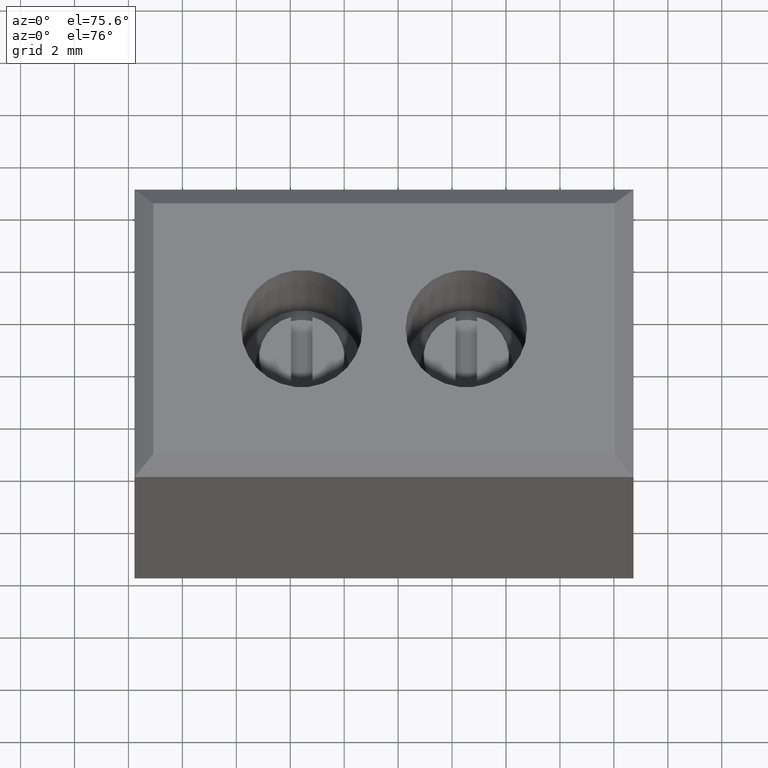
[diagram: clean part render]
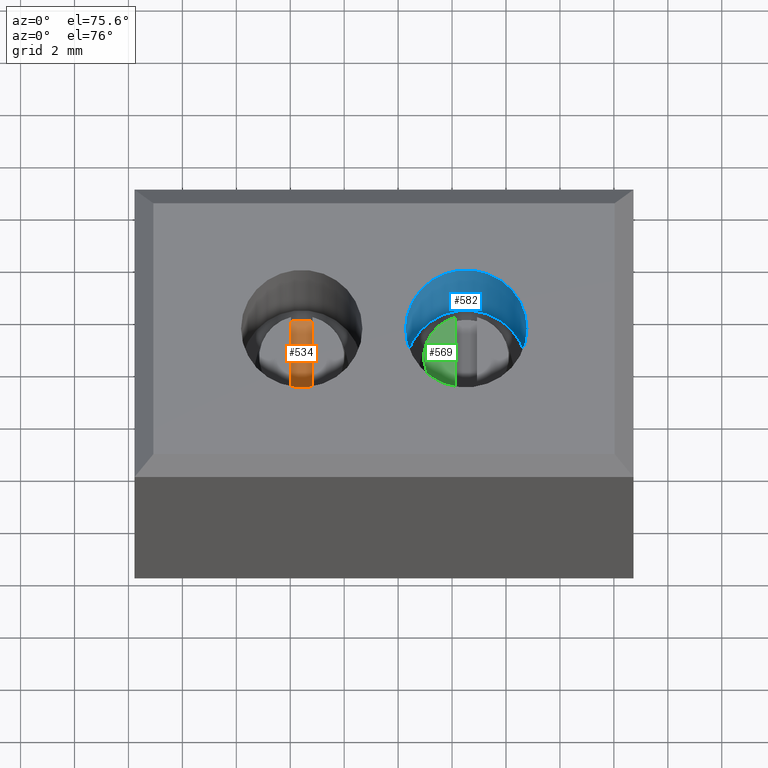
[diagram: same view with three faces highlighted in distinct colors, each labeled with its STEP entity id]
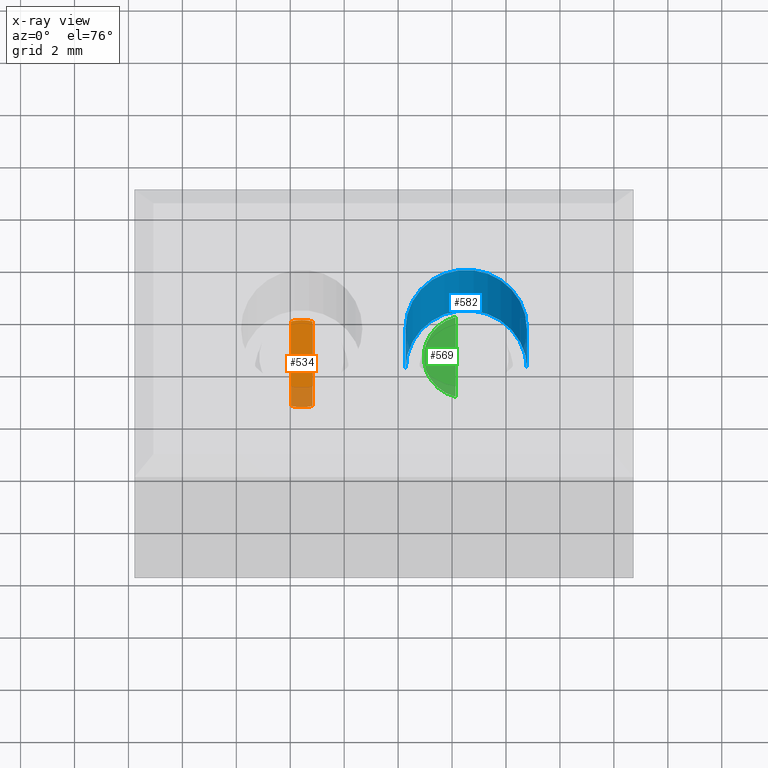
[diagram: x-ray of the same camera — body ghosted, the three highlighted faces saturated]
A machine part, auxiliary view with three faces highlighted in distinct colors.
The next image is the same camera in x-ray (body ghosted, the three faces saturated) — at least one of them is partly hidden behind the body in this view.
Their STEP definitions:

[orange] entity #534 — the highlighted planar face has unit normal (0, 0, -1).
#117 = EDGE_LOOP ( 'NONE', ( #1908, #1924, #1926, #1935, #1932, #1925 ) ) ;
#416 = EDGE_CURVE ( 'NONE', #2117, #2175, #1098, .T. ) ;
#426 = EDGE_CURVE ( 'NONE', #2133, #2117, #1783, .T. ) ;
#431 = EDGE_CURVE ( 'NONE', #2180, #2133, #1158, .T. ) ;
#435 = EDGE_CURVE ( 'NONE', #2175, #2211, #1151, .T. ) ;
#440 = EDGE_CURVE ( 'NONE', #2189, #2180, #1173, .T. ) ;
#457 = EDGE_CURVE ( 'NONE', #2211, #2189, #2452, .T. ) ;
#534 = ADVANCED_FACE ( 'NONE', ( #763 ), #760, .F. ) ;
#760 = PLANE ( 'NONE',  #1248 ) ;
#763 = FACE_OUTER_BOUND ( 'NONE', #117, .T. ) ;
#764 = CARTESIAN_POINT ( 'NONE',  ( -1.974240686983424600, 3.618464038110440000, 11.27029407890769600 ) ) ;
#790 = DIRECTION ( 'NONE',  ( 0.0000000000000000000, 1.000000000000000000, 0.0000000000000000000 ) ) ;
#793 = DIRECTION ( 'NONE',  ( 0.0000000000000000000, 0.0000000000000000000, -1.000000000000000000 ) ) ;
#1098 = CIRCLE ( 'NONE', #1099, 1.668399018158739400 ) ;
#1099 = AXIS2_PLACEMENT_3D ( 'NONE', #1775, #1754, #1756 ) ;
#1109 = VECTOR ( 'NONE', #1779, 1000.000000000000000 ) ;
#1143 = AXIS2_PLACEMENT_3D ( 'NONE', #1828, #1835, #1850 ) ;
#1147 = AXIS2_PLACEMENT_3D ( 'NONE', #1788, #1789, #1790 ) ;
#1151 = CIRCLE ( 'NONE', #1143, 1.668399018158739400 ) ;
#1158 = CIRCLE ( 'NONE', #1147, 1.668399018158739400 ) ;
#1162 = AXIS2_PLACEMENT_3D ( 'NONE', #1834, #1838, #1824 ) ;
#1163 = VECTOR ( 'NONE', #1837, 1000.000000000000000 ) ;
#1173 = CIRCLE ( 'NONE', #1162, 1.668399018158739400 ) ;
#1248 = AXIS2_PLACEMENT_3D ( 'NONE', #764, #793, #790 ) ;
#1422 = CARTESIAN_POINT ( 'NONE',  ( -1.974240686983424600, 7.122291892015842200, 11.27029407890769600 ) ) ;
#1427 = CARTESIAN_POINT ( 'NONE',  ( -1.974240686983424600, 3.882813363738153000, 11.27029407890769600 ) ) ;
#1489 = CARTESIAN_POINT ( 'NONE',  ( -1.574240686983424200, 7.170951646035737400, 11.27029407890769600 ) ) ;
#1504 = CARTESIAN_POINT ( 'NONE',  ( -1.174240686983425000, 7.122291892015842200, 11.27029407890769600 ) ) ;
#1507 = CARTESIAN_POINT ( 'NONE',  ( -1.174240686983424100, 3.882813363738153000, 11.27029407890769600 ) ) ;
#1513 = CARTESIAN_POINT ( 'NONE',  ( -1.574240686983424000, 3.834153609718258200, 11.27029407890769600 ) ) ;
#1731 = CARTESIAN_POINT ( 'NONE',  ( -1.174240686983425000, 7.386641217643553900, 11.27029407890769600 ) ) ;
#1754 = DIRECTION ( 'NONE',  ( -0.0000000000000000000, 0.0000000000000000000, 1.000000000000000000 ) ) ;
#1756 = DIRECTION ( 'NONE',  ( 5.328735942432241800E-015, 1.000000000000000000, 0.0000000000000000000 ) ) ;
#1775 = CARTESIAN_POINT ( 'NONE',  ( -1.574240686983424200, 5.502552627876998100, 11.27029407890769600 ) ) ;
#1779 = DIRECTION ( 'NONE',  ( 1.294766552561437500E-016, -1.000000000000000000, 0.0000000000000000000 ) ) ;
#1783 = LINE ( 'NONE', #1812, #1109 ) ;
#1788 = CARTESIAN_POINT ( 'NONE',  ( -1.574240686983424200, 5.502552627876998100, 11.27029407890769600 ) ) ;
#1789 = DIRECTION ( 'NONE',  ( -0.0000000000000000000, 0.0000000000000000000, 1.000000000000000000 ) ) ;
#1790 = DIRECTION ( 'NONE',  ( 0.0000000000000000000, 1.000000000000000000, 0.0000000000000000000 ) ) ;
#1812 = CARTESIAN_POINT ( 'NONE',  ( -1.974240686983424600, 7.386641217643553900, 11.27029407890769600 ) ) ;
#1824 = DIRECTION ( 'NONE',  ( 0.0000000000000000000, 1.000000000000000000, 0.0000000000000000000 ) ) ;
#1828 = CARTESIAN_POINT ( 'NONE',  ( -1.574240686983424200, 5.502552627876998100, 11.27029407890769600 ) ) ;
#1834 = CARTESIAN_POINT ( 'NONE',  ( -1.574240686983424200, 5.502552627876998100, 11.27029407890769600 ) ) ;
#1835 = DIRECTION ( 'NONE',  ( -0.0000000000000000000, 0.0000000000000000000, 1.000000000000000000 ) ) ;
#1837 = DIRECTION ( 'NONE',  ( -1.150903602276833000E-016, 1.000000000000000000, -0.0000000000000000000 ) ) ;
#1838 = DIRECTION ( 'NONE',  ( -0.0000000000000000000, 0.0000000000000000000, 1.000000000000000000 ) ) ;
#1850 = DIRECTION ( 'NONE',  ( 0.0000000000000000000, 1.000000000000000000, 0.0000000000000000000 ) ) ;
#1908 = ORIENTED_EDGE ( 'NONE', *, *, #416, .T. ) ;
#1924 = ORIENTED_EDGE ( 'NONE', *, *, #435, .T. ) ;
#1925 = ORIENTED_EDGE ( 'NONE', *, *, #426, .T. ) ;
#1926 = ORIENTED_EDGE ( 'NONE', *, *, #457, .T. ) ;
#1932 = ORIENTED_EDGE ( 'NONE', *, *, #431, .T. ) ;
#1935 = ORIENTED_EDGE ( 'NONE', *, *, #440, .T. ) ;
#2117 = VERTEX_POINT ( 'NONE', #1427 ) ;
#2133 = VERTEX_POINT ( 'NONE', #1422 ) ;
#2175 = VERTEX_POINT ( 'NONE', #1513 ) ;
#2180 = VERTEX_POINT ( 'NONE', #1489 ) ;
#2189 = VERTEX_POINT ( 'NONE', #1504 ) ;
#2211 = VERTEX_POINT ( 'NONE', #1507 ) ;
#2452 = LINE ( 'NONE', #1731, #1163 ) ;

[blue] entity #582 — the highlighted cylindrical surface (partial cylindrical patch) has radius 2.25 mm, axis along (-0, -0, 1).
#69 = EDGE_LOOP ( 'NONE', ( #2048, #2000, #2012, #2033 ) ) ;
#380 = EDGE_CURVE ( 'NONE', #2134, #2138, #1052, .T. ) ;
#502 = EDGE_CURVE ( 'NONE', #2123, #2134, #660, .T. ) ;
#513 = EDGE_CURVE ( 'NONE', #2157, #2138, #675, .T. ) ;
#514 = EDGE_CURVE ( 'NONE', #2157, #2123, #1227, .T. ) ;
#582 = ADVANCED_FACE ( 'NONE', ( #1699 ), #1674, .F. ) ;
#656 = CARTESIAN_POINT ( 'NONE',  ( 6.775759313016641800, 5.502552627867807200, 9.250000000000001800 ) ) ;
#660 = LINE ( 'NONE', #656, #1189 ) ;
#670 = DIRECTION ( 'NONE',  ( -0.0000000000000000000, -0.0000000000000000000, 1.000000000000000000 ) ) ;
#675 = LINE ( 'NONE', #676, #1212 ) ;
#676 = CARTESIAN_POINT ( 'NONE',  ( 2.275759313016508100, 5.502552627867807200, 9.250000000000001800 ) ) ;
#691 = DIRECTION ( 'NONE',  ( -0.0000000000000000000, -0.0000000000000000000, 1.000000000000000000 ) ) ;
#708 = CARTESIAN_POINT ( 'NONE',  ( 4.525759313016575200, 5.502552627867807200, 10.47460826244802200 ) ) ;
#715 = DIRECTION ( 'NONE',  ( 1.000000000000000000, 0.0000000000000000000, 0.0000000000000000000 ) ) ;
#718 = DIRECTION ( 'NONE',  ( 0.0000000000000000000, -0.0000000000000000000, -1.000000000000000000 ) ) ;
#1052 = CIRCLE ( 'NONE', #1054, 2.250000000000067100 ) ;
#1054 = AXIS2_PLACEMENT_3D ( 'NONE', #2412, #2369, #2406 ) ;
#1189 = VECTOR ( 'NONE', #670, 1000.000000000000000 ) ;
#1212 = VECTOR ( 'NONE', #691, 1000.000000000000000 ) ;
#1223 = AXIS2_PLACEMENT_3D ( 'NONE', #708, #718, #715 ) ;
#1227 = CIRCLE ( 'NONE', #1223, 2.250000000000067100 ) ;
#1291 = AXIS2_PLACEMENT_3D ( 'NONE', #1675, #1689, #1695 ) ;
#1424 = CARTESIAN_POINT ( 'NONE',  ( 6.775759313016641800, 5.502552627867807200, 16.50000000000000000 ) ) ;
#1432 = CARTESIAN_POINT ( 'NONE',  ( 6.775759313016641800, 5.502552627867807200, 10.47460826244802200 ) ) ;
#1433 = CARTESIAN_POINT ( 'NONE',  ( 2.275759313016508100, 5.502552627867807200, 16.50000000000000000 ) ) ;
#1458 = CARTESIAN_POINT ( 'NONE',  ( 2.275759313016508100, 5.502552627867807200, 10.47460826244802200 ) ) ;
#1674 = CYLINDRICAL_SURFACE ( 'NONE', #1291, 2.250000000000067100 ) ;
#1675 = CARTESIAN_POINT ( 'NONE',  ( 4.525759313016575200, 5.502552627867807200, 9.250000000000001800 ) ) ;
#1689 = DIRECTION ( 'NONE',  ( -0.0000000000000000000, -0.0000000000000000000, 1.000000000000000000 ) ) ;
#1695 = DIRECTION ( 'NONE',  ( 1.000000000000000000, 0.0000000000000000000, 0.0000000000000000000 ) ) ;
#1699 = FACE_OUTER_BOUND ( 'NONE', #69, .T. ) ;
#2000 = ORIENTED_EDGE ( 'NONE', *, *, #514, .T. ) ;
#2012 = ORIENTED_EDGE ( 'NONE', *, *, #502, .T. ) ;
#2033 = ORIENTED_EDGE ( 'NONE', *, *, #380, .T. ) ;
#2048 = ORIENTED_EDGE ( 'NONE', *, *, #513, .F. ) ;
#2123 = VERTEX_POINT ( 'NONE', #1432 ) ;
#2134 = VERTEX_POINT ( 'NONE', #1424 ) ;
#2138 = VERTEX_POINT ( 'NONE', #1433 ) ;
#2157 = VERTEX_POINT ( 'NONE', #1458 ) ;
#2369 = DIRECTION ( 'NONE',  ( 0.0000000000000000000, 0.0000000000000000000, 1.000000000000000000 ) ) ;
#2406 = DIRECTION ( 'NONE',  ( 1.000000000000000000, 0.0000000000000000000, 0.0000000000000000000 ) ) ;
#2412 = CARTESIAN_POINT ( 'NONE',  ( 4.525759313016575200, 5.502552627867807200, 16.50000000000000000 ) ) ;

[green] entity #569 — the highlighted planar face has unit normal (0, 0, 1).
#8 = ORIENTED_EDGE ( 'NONE', *, *, #433, .F. ) ;
#9 = ORIENTED_EDGE ( 'NONE', *, *, #429, .F. ) ;
#115 = EDGE_LOOP ( 'NONE', ( #8, #9 ) ) ;
#429 = EDGE_CURVE ( 'NONE', #2167, #2119, #1133, .T. ) ;
#433 = EDGE_CURVE ( 'NONE', #2119, #2167, #1819, .T. ) ;
#569 = ADVANCED_FACE ( 'NONE', ( #1573 ), #1576, .T. ) ;
#1133 = CIRCLE ( 'NONE', #1148, 1.575640603189852000 ) ;
#1148 = AXIS2_PLACEMENT_3D ( 'NONE', #1791, #1786, #1814 ) ;
#1156 = VECTOR ( 'NONE', #1849, 1000.000000000000000 ) ;
#1288 = AXIS2_PLACEMENT_3D ( 'NONE', #1614, #1623, #1617 ) ;
#1448 = CARTESIAN_POINT ( 'NONE',  ( 4.125759313016574800, 7.026574711188286100, 12.27029407890769800 ) ) ;
#1503 = CARTESIAN_POINT ( 'NONE',  ( 4.125759313016574800, 3.978530544565709500, 12.27029407890769800 ) ) ;
#1573 = FACE_OUTER_BOUND ( 'NONE', #115, .T. ) ;
#1576 = PLANE ( 'NONE',  #1288 ) ;
#1614 = CARTESIAN_POINT ( 'NONE',  ( 4.925759313016309100, 5.502552627876998100, 12.27029407890769800 ) ) ;
#1617 = DIRECTION ( 'NONE',  ( 0.0000000000000000000, -1.000000000000000000, 0.0000000000000000000 ) ) ;
#1623 = DIRECTION ( 'NONE',  ( 0.0000000000000000000, 0.0000000000000000000, 1.000000000000000000 ) ) ;
#1786 = DIRECTION ( 'NONE',  ( -0.0000000000000000000, 0.0000000000000000000, -1.000000000000000000 ) ) ;
#1791 = CARTESIAN_POINT ( 'NONE',  ( 4.525759313016575200, 5.502552627876998100, 12.27029407890769800 ) ) ;
#1814 = DIRECTION ( 'NONE',  ( 0.0000000000000000000, 1.000000000000000000, 0.0000000000000000000 ) ) ;
#1819 = LINE ( 'NONE', #1842, #1156 ) ;
#1842 = CARTESIAN_POINT ( 'NONE',  ( 4.125759313016574800, 5.502552627876998100, 12.27029407890769800 ) ) ;
#1849 = DIRECTION ( 'NONE',  ( 1.294766552561437500E-016, -1.000000000000000000, 0.0000000000000000000 ) ) ;
#2119 = VERTEX_POINT ( 'NONE', #1448 ) ;
#2167 = VERTEX_POINT ( 'NONE', #1503 ) ;